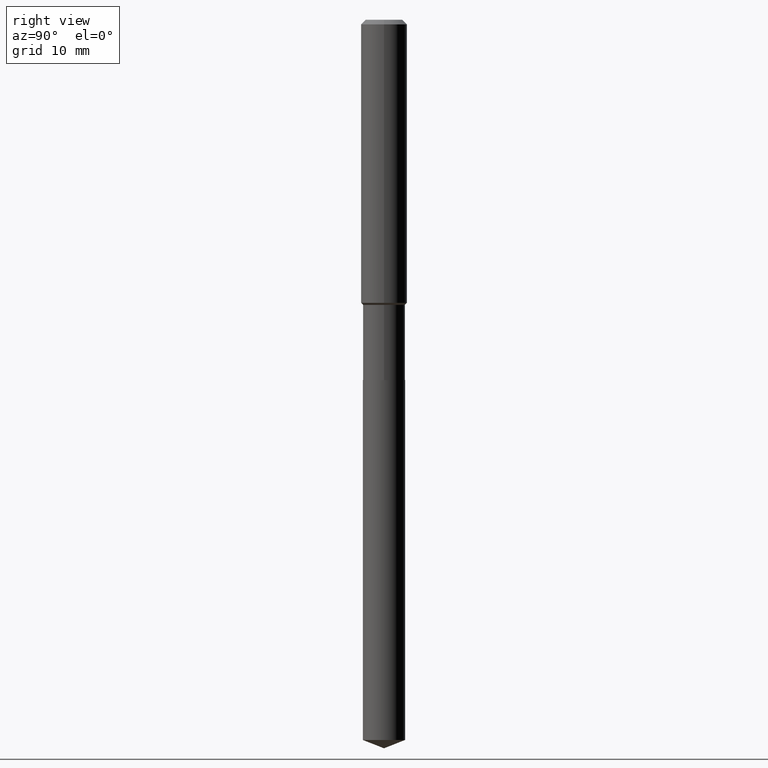
[diagram: clean part render]
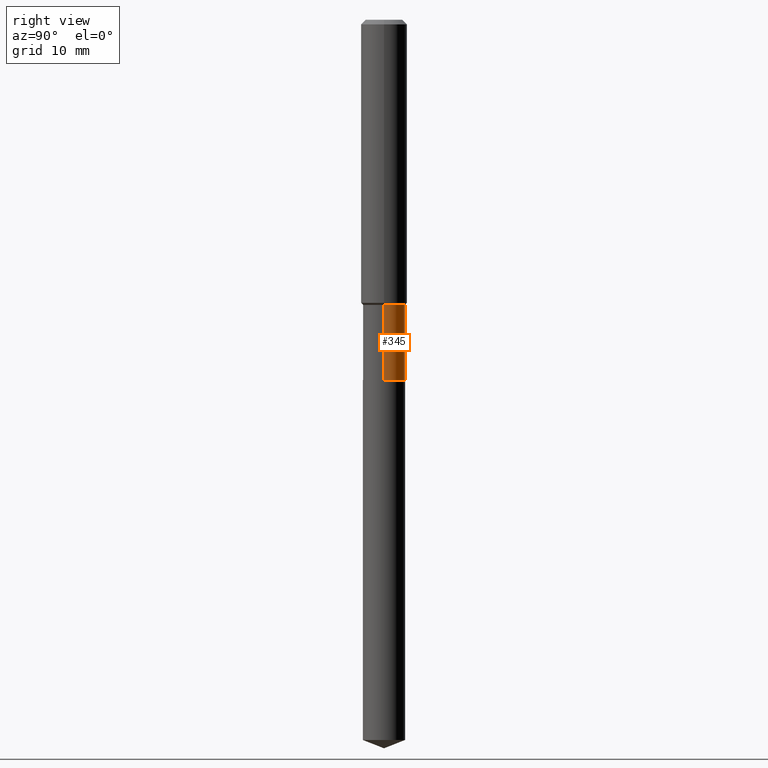
[diagram: same view with one face highlighted and labeled with its STEP entity id]
A machine part, right view. The second image highlights one B-rep face of the part: STEP entity #345.
In plain terms, the highlighted cylindrical surface (edge-blend (fillet) strip) has radius 2.7495 mm, axis along (-0, 0, 1).
Its self-contained STEP definition (entity closure, byte-faithful):
#17 = EDGE_CURVE ( 'NONE', #478, #401, #474, .T. ) ;
#34 = EDGE_CURVE ( 'NONE', #478, #66, #64, .T. ) ;
#38 = AXIS2_PLACEMENT_3D ( 'NONE', #386, #353, #426 ) ;
#53 = CYLINDRICAL_SURFACE ( 'NONE', #38, 0.1082499999999999712 ) ;
#61 = ORIENTED_EDGE ( 'NONE', *, *, #412, .F. ) ;
#64 = LINE ( 'NONE', #213, #67 ) ;
#66 = VERTEX_POINT ( 'NONE', #236 ) ;
#67 = VECTOR ( 'NONE', #364, 39.37007874015748143 ) ;
#70 = EDGE_LOOP ( 'NONE', ( #260, #452, #61, #130 ) ) ;
#122 = FACE_OUTER_BOUND ( 'NONE', #70, .T. ) ;
#130 = ORIENTED_EDGE ( 'NONE', *, *, #34, .F. ) ;
#138 = DIRECTION ( 'NONE',  ( 1.000000000000000000, -6.982962677686267499E-15, 0.000000000000000000 ) ) ;
#170 = DIRECTION ( 'NONE',  ( -2.445468806185136877E-29, 3.491481338843145188E-15, 1.000000000000000000 ) ) ;
#200 = DIRECTION ( 'NONE',  ( 1.000000000000000000, -6.982962677686271444E-15, 0.000000000000000000 ) ) ;
#213 = CARTESIAN_POINT ( 'NONE',  ( 0.1082499999999999712, -7.559057098595381624E-16, 5.278461359799098590E-30 ) ) ;
#217 = DIRECTION ( 'NONE',  ( -2.445468806185136597E-29, 3.491481338843145583E-15, 1.000000000000000000 ) ) ;
#236 = CARTESIAN_POINT ( 'NONE',  ( 0.1082499999999999435, -5.866037797390366639E-15, -1.463600000000000012 ) ) ;
#253 = CARTESIAN_POINT ( 'NONE',  ( 0.1082499999999999990, -7.214797038585475517E-15, -1.849900000000000322 ) ) ;
#260 = ORIENTED_EDGE ( 'NONE', *, *, #17, .T. ) ;
#280 = LINE ( 'NONE', #392, #359 ) ;
#293 = EDGE_CURVE ( 'NONE', #401, #469, #280, .T. ) ;
#319 = CARTESIAN_POINT ( 'NONE',  ( -0.1082499999999999851, -5.015349196668073880E-15, -1.849900000000000322 ) ) ;
#321 = CARTESIAN_POINT ( 'NONE',  ( -0.1082499999999999435, -5.015349196668073880E-15, -1.463600000000000012 ) ) ;
#345 = ADVANCED_FACE ( 'NONE', ( #122 ), #53, .T. ) ;
#347 = CARTESIAN_POINT ( 'NONE',  ( 3.579188144732565988E-29, -5.110132087530827984E-15, -1.463600000000000012 ) ) ;
#353 = DIRECTION ( 'NONE',  ( -2.445468806185136597E-29, 3.491481338843145583E-15, 1.000000000000000000 ) ) ;
#355 = DIRECTION ( 'NONE',  ( -2.445468806185136597E-29, 3.491481338843145583E-15, 1.000000000000000000 ) ) ;
#359 = VECTOR ( 'NONE', #170, 39.37007874015748143 ) ;
#364 = DIRECTION ( 'NONE',  ( -2.445468806185136877E-29, 3.491481338843145188E-15, 1.000000000000000000 ) ) ;
#373 = AXIS2_PLACEMENT_3D ( 'NONE', #473, #217, #138 ) ;
#386 = CARTESIAN_POINT ( 'NONE',  ( 0.000000000000000000, 0.000000000000000000, 0.000000000000000000 ) ) ;
#392 = CARTESIAN_POINT ( 'NONE',  ( -0.1082499999999999712, 7.691625114603082469E-16, -5.324747235200933206E-30 ) ) ;
#401 = VERTEX_POINT ( 'NONE', #319 ) ;
#412 = EDGE_CURVE ( 'NONE', #66, #469, #487, .T. ) ;
#426 = DIRECTION ( 'NONE',  ( 1.000000000000000000, -6.982962677686266711E-15, 4.876176775795935232E-29 ) ) ;
#437 = AXIS2_PLACEMENT_3D ( 'NONE', #347, #355, #200 ) ;
#452 = ORIENTED_EDGE ( 'NONE', *, *, #293, .T. ) ;
#469 = VERTEX_POINT ( 'NONE', #321 ) ;
#473 = CARTESIAN_POINT ( 'NONE',  ( 4.523872744561885153E-29, -6.458891328725936072E-15, -1.849900000000000322 ) ) ;
#474 = CIRCLE ( 'NONE', #373, 0.1082499999999999990 ) ;
#478 = VERTEX_POINT ( 'NONE', #253 ) ;
#487 = CIRCLE ( 'NONE', #437, 0.1082499999999999435 ) ;